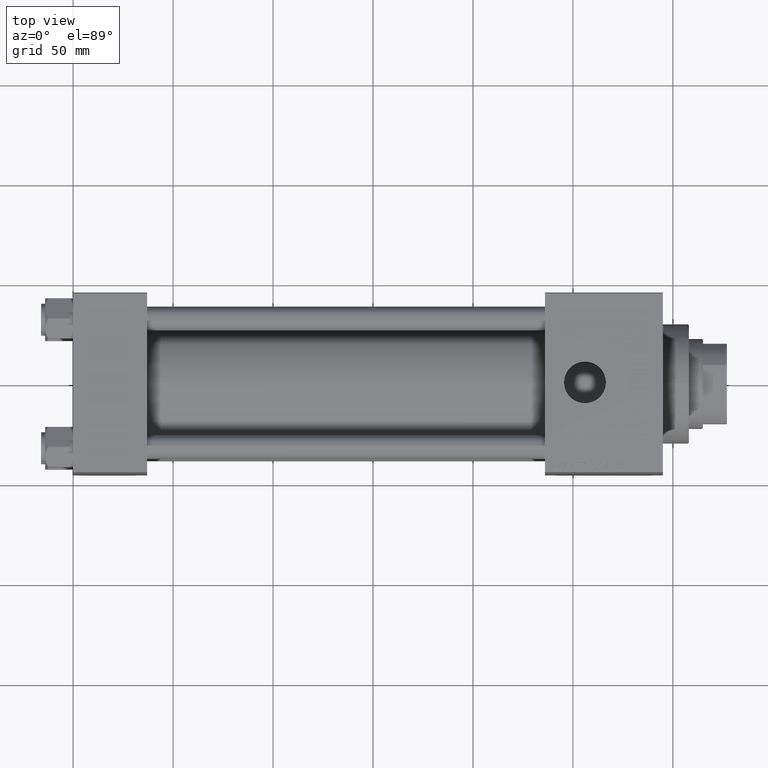
[diagram: clean part render]
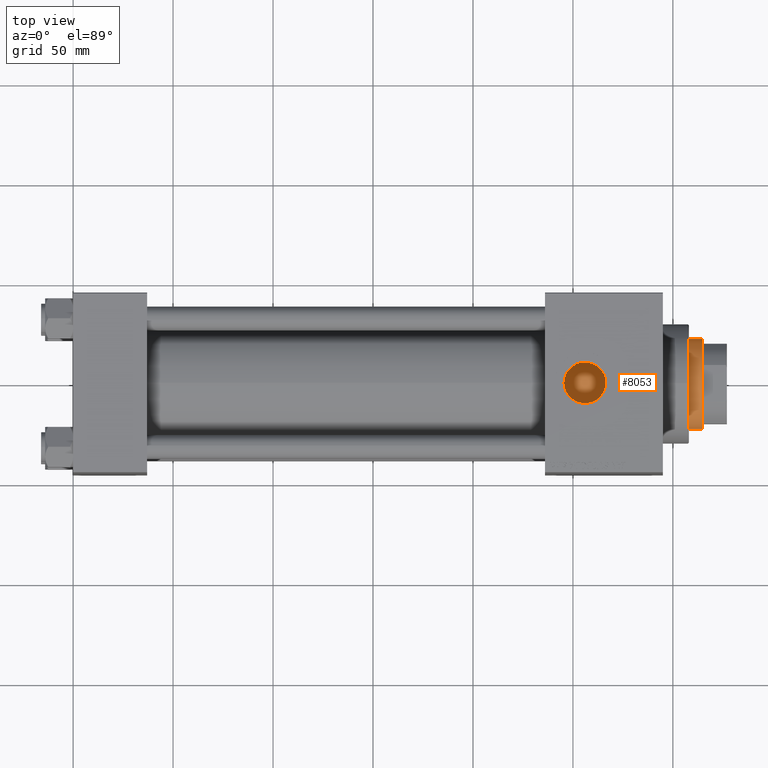
[diagram: same view with one face highlighted and labeled with its STEP entity id]
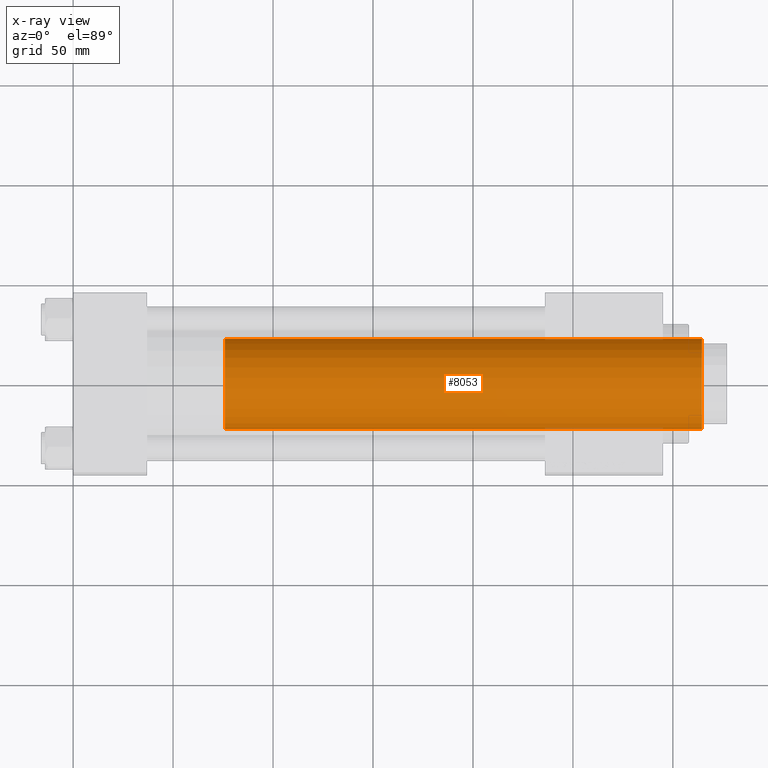
[diagram: x-ray of the same camera — body ghosted, the highlighted face saturated]
A machine part, top view. The second image highlights one B-rep face of the part: STEP entity #8053.
The next image is the same camera in x-ray: the body ghosted, the highlighted face saturated — about 1% of this face is hidden behind the body in this view.
In plain terms, the highlighted cylindrical surface (partial cylindrical patch) has radius 22.5 mm, axis along (-1, 0, 0).
Its self-contained STEP definition (entity closure, byte-faithful):
#52 = DIRECTION ( 'NONE',  ( 0.000000000000000000, 0.000000000000000000, 1.000000000000000000 ) ) ;
#209 = ORIENTED_EDGE ( 'NONE', *, *, #22934, .T. ) ;
#908 = CIRCLE ( 'NONE', #29227, 22.50000000000000355 ) ;
#1311 = AXIS2_PLACEMENT_3D ( 'NONE', #2195, #21730, #18189 ) ;
#2195 = CARTESIAN_POINT ( 'NONE',  ( 0.000000000000000000, 0.000000000000000000, 277.5000000000000568 ) ) ;
#3324 = AXIS2_PLACEMENT_3D ( 'NONE', #11589, #45794, #22751 ) ;
#7527 = CYLINDRICAL_SURFACE ( 'NONE', #3324, 22.50000000000000355 ) ;
#8050 = VERTEX_POINT ( 'NONE', #18210 ) ;
#8053 = ADVANCED_FACE ( 'NONE', ( #18962 ), #7527, .T. ) ;
#8218 = CARTESIAN_POINT ( 'NONE',  ( -22.50000000000000355, 0.000000000000000000, 39.00000000000000000 ) ) ;
#8456 = EDGE_CURVE ( 'NONE', #24362, #8050, #908, .T. ) ;
#8948 = EDGE_CURVE ( 'NONE', #21585, #24362, #23820, .T. ) ;
#11589 = CARTESIAN_POINT ( 'NONE',  ( 0.000000000000000000, 0.000000000000000000, 277.9999999999999432 ) ) ;
#15026 = CARTESIAN_POINT ( 'NONE',  ( 0.000000000000000000, 0.000000000000000000, 39.00000000000000000 ) ) ;
#15073 = CIRCLE ( 'NONE', #1311, 22.50000000000000355 ) ;
#18189 = DIRECTION ( 'NONE',  ( 1.000000000000000000, 0.000000000000000000, 0.000000000000000000 ) ) ;
#18210 = CARTESIAN_POINT ( 'NONE',  ( 22.50000000000000355, 2.755455298081544383E-15, 39.00000000000000000 ) ) ;
#18962 = FACE_OUTER_BOUND ( 'NONE', #34129, .T. ) ;
#21585 = VERTEX_POINT ( 'NONE', #23551 ) ;
#21730 = DIRECTION ( 'NONE',  ( 0.000000000000000000, 0.000000000000000000, -1.000000000000000000 ) ) ;
#21787 = VERTEX_POINT ( 'NONE', #37191 ) ;
#22751 = DIRECTION ( 'NONE',  ( -1.000000000000000000, 0.000000000000000000, 0.000000000000000000 ) ) ;
#22934 = EDGE_CURVE ( 'NONE', #21787, #21585, #15073, .T. ) ;
#23551 = CARTESIAN_POINT ( 'NONE',  ( -22.50000000000000355, 0.000000000000000000, 277.5000000000000568 ) ) ;
#23820 = LINE ( 'NONE', #32647, #38954 ) ;
#24337 = ORIENTED_EDGE ( 'NONE', *, *, #37587, .F. ) ;
#24362 = VERTEX_POINT ( 'NONE', #8218 ) ;
#27424 = DIRECTION ( 'NONE',  ( 1.000000000000000000, 0.000000000000000000, 0.000000000000000000 ) ) ;
#29227 = AXIS2_PLACEMENT_3D ( 'NONE', #15026, #52, #27424 ) ;
#30036 = CARTESIAN_POINT ( 'NONE',  ( 22.50000000000000355, 2.755455298081544383E-15, 277.9999999999999432 ) ) ;
#32155 = DIRECTION ( 'NONE',  ( -0.000000000000000000, -0.000000000000000000, -1.000000000000000000 ) ) ;
#32647 = CARTESIAN_POINT ( 'NONE',  ( -22.50000000000000355, 0.000000000000000000, 277.9999999999999432 ) ) ;
#34129 = EDGE_LOOP ( 'NONE', ( #24337, #209, #49795, #35086 ) ) ;
#34834 = LINE ( 'NONE', #30036, #47755 ) ;
#35086 = ORIENTED_EDGE ( 'NONE', *, *, #8456, .T. ) ;
#37191 = CARTESIAN_POINT ( 'NONE',  ( 22.50000000000000355, 2.755455298081544383E-15, 277.5000000000000568 ) ) ;
#37587 = EDGE_CURVE ( 'NONE', #21787, #8050, #34834, .T. ) ;
#38954 = VECTOR ( 'NONE', #32155, 1000.000000000000000 ) ;
#45794 = DIRECTION ( 'NONE',  ( -0.000000000000000000, -0.000000000000000000, -1.000000000000000000 ) ) ;
#46249 = DIRECTION ( 'NONE',  ( -0.000000000000000000, -0.000000000000000000, -1.000000000000000000 ) ) ;
#47755 = VECTOR ( 'NONE', #46249, 1000.000000000000000 ) ;
#49795 = ORIENTED_EDGE ( 'NONE', *, *, #8948, .T. ) ;